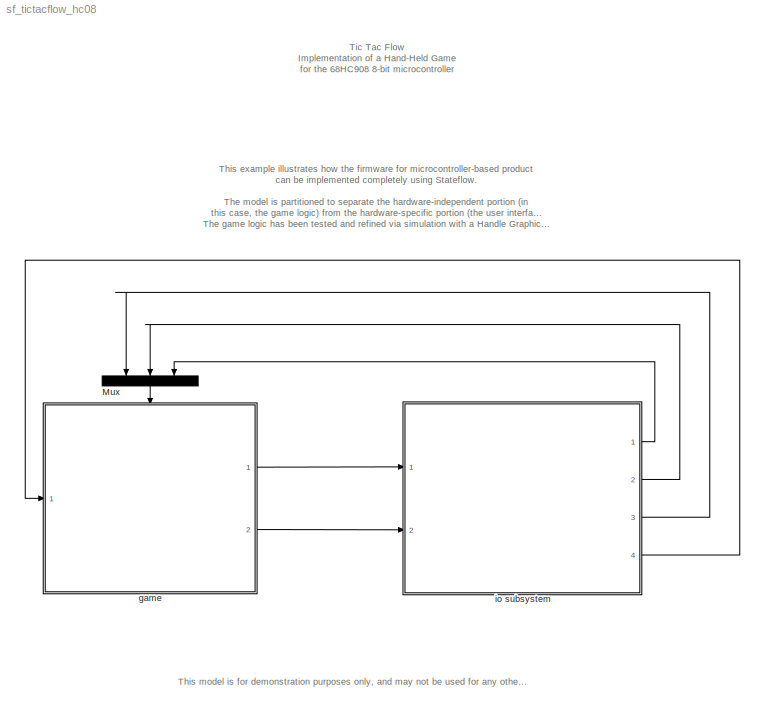
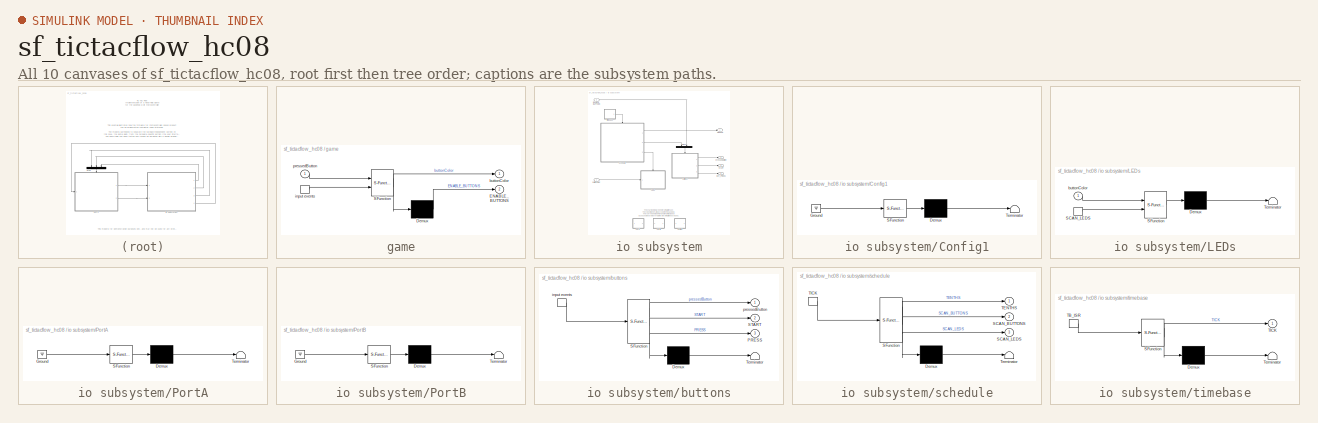
[diagram: thumbnail index - all 10 canvases of the model, root first then tree order]
MODEL sf_tictacflow_hc08
KIND model
BLOCK [Mux] Mux
  DisplayOption = bar
  Inputs = 3
  Ports = [3, 1]
BLOCK [SubSystem] game
  MaskDescription = Stateflow diagram
  MaskDisplay = plot(sf('Private','sfblk','xIcon'),sf('Private','sfblk','yIcon'));text(0.5,0,sf('Private', 'sfblk', 'tIcon'),'HorizontalAl','Center','VerticalAl','Bottom');
  MaskIconFrame = off
  MaskIconOpaque = off
  MaskIconRotate = none
  MaskIconUnits = autoscale
  MaskSelfModifiable = on
  MaskType = Stateflow
  MinAlgLoopOccurrences = off
  Ports = [1, 2, 0, 1]
  PropExecContextAcrossSSBoundary = on
  RTWSystemCode = Auto
  TreatAsAtomicUnit = on
BLOCK [Demux] game/ Demux 
  Outputs = 1
  Ports = [1, 1]
BLOCK [S-Function] game/ SFunction 
  FunctionName = sf_sfun
  PortCounts = [2 2]
  Ports = [2, 2]
  Tag = Stateflow S-Function sf_tictacflow_hc08 1
BLOCK [TriggerPort] game/ input events 
  Ports = [0, 1]
  ShowOutputPort = on
  TriggerType = function-call
  ZeroCross = off
BLOCK [Outport] game/ENABLE_BUTTONS
  IconDisplay = Port number
  Port = 2
BLOCK [Outport] game/buttonColor
  IconDisplay = Port number
BLOCK [Inport] game/pressedButton
  IconDisplay = Port number
  LatchInput = off
  Port = 1
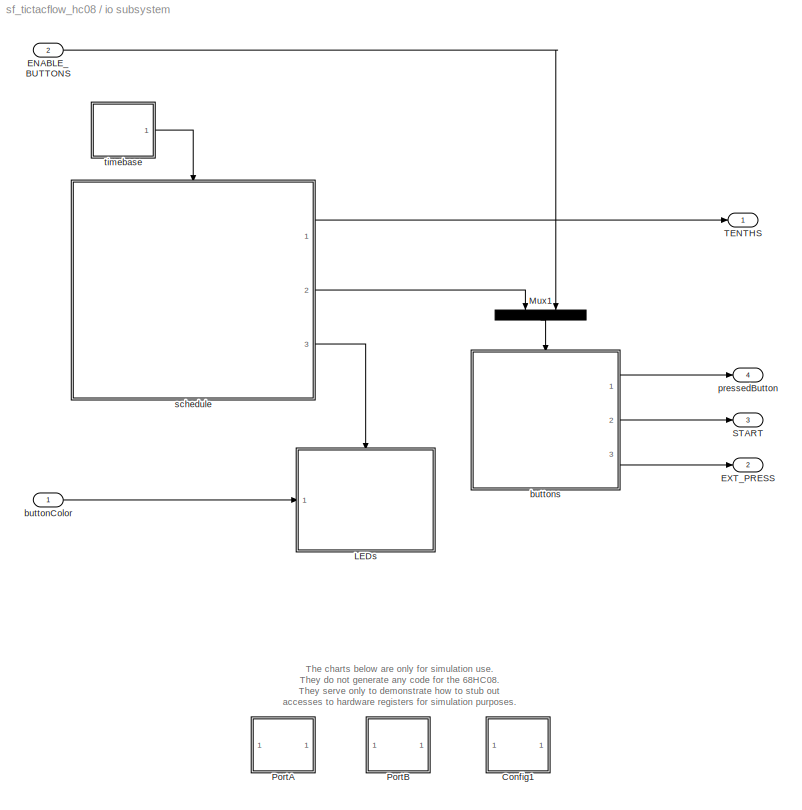
BLOCK [SubSystem] io subsystem
  MinAlgLoopOccurrences = off
  Ports = [2, 4]
  PropExecContextAcrossSSBoundary = on
  RTWSystemCode = Auto
  TreatAsAtomicUnit = off
BLOCK [SubSystem] io subsystem/Config1
  MaskDescription = Stateflow diagram
  MaskDisplay = plot(sf('Private','sfblk','xIcon'),sf('Private','sfblk','yIcon'));text(0.5,0,sf('Private', 'sfblk', 'tIcon'),'HorizontalAl','Center','VerticalAl','Bottom');
  MaskIconFrame = off
  MaskIconOpaque = on
  MaskIconRotate = none
  MaskIconUnits = autoscale
  MaskSelfModifiable = on
  MaskType = Stateflow
  MinAlgLoopOccurrences = off
  Ports = []
  PropExecContextAcrossSSBoundary = on
  RTWSystemCode = Auto
  TreatAsAtomicUnit = off
BLOCK [Demux] io subsystem/Config1/ Demux 
  Outputs = 1
  Ports = [1, 1]
BLOCK [Ground] io subsystem/Config1/ Ground 
BLOCK [S-Function] io subsystem/Config1/ SFunction 
  FunctionName = sf_sfun
  PortCounts = [1 1]
  Ports = [1, 1]
  Tag = Stateflow S-Function sf_tictacflow_hc08 2
BLOCK [Terminator] io subsystem/Config1/ Terminator 
BLOCK [Inport] io subsystem/ENABLE_BUTTONS
  IconDisplay = Port number
  LatchInput = off
  Port = 2
BLOCK [Outport] io subsystem/EXT_PRESS
  IconDisplay = Port number
  Port = 2
BLOCK [SubSystem] io subsystem/LEDs
  MaskDescription = Stateflow diagram
  MaskDisplay = plot(sf('Private','sfblk','xIcon'),sf('Private','sfblk','yIcon'));text(0.5,0,sf('Private', 'sfblk', 'tIcon'),'HorizontalAl','Center','VerticalAl','Bottom');
  MaskIconFrame = off
  MaskIconOpaque = off
  MaskIconRotate = none
  MaskIconUnits = autoscale
  MaskSelfModifiable = on
  MaskType = Stateflow
  MinAlgLoopOccurrences = off
  Ports = [1, 0, 0, 1]
  PropExecContextAcrossSSBoundary = on
  RTWSystemCode = Auto
  TreatAsAtomicUnit = on
BLOCK [Demux] io subsystem/LEDs/ Demux 
  Outputs = 1
  Ports = [1, 1]
BLOCK [S-Function] io subsystem/LEDs/ SFunction 
  FunctionName = sf_sfun
  PortCounts = [2 1]
  Ports = [2, 1]
  Tag = Stateflow S-Function sf_tictacflow_hc08 11
BLOCK [Terminator] io subsystem/LEDs/ Terminator 
BLOCK [TriggerPort] io subsystem/LEDs/SCAN_LEDS
  Ports = [0, 1]
  ShowOutputPort = on
  TriggerType = either
  ZeroCross = off
BLOCK [Inport] io subsystem/LEDs/buttonColor
  IconDisplay = Port number
  LatchInput = off
  Port = 1
BLOCK [Mux] io subsystem/Mux1
  DisplayOption = bar
  Inputs = 2
  Ports = [2, 1]
BLOCK [SubSystem] io subsystem/PortA
  MaskDescription = Stateflow diagram
  MaskDisplay = plot(sf('Private','sfblk','xIcon'),sf('Private','sfblk','yIcon'));text(0.5,0,sf('Private', 'sfblk', 'tIcon'),'HorizontalAl','Center','VerticalAl','Bottom');
  MaskIconFrame = off
  MaskIconOpaque = on
  MaskIconRotate = none
  MaskIconUnits = autoscale
  MaskSelfModifiable = on
  MaskType = Stateflow
  MinAlgLoopOccurrences = off
  Ports = []
  PropExecContextAcrossSSBoundary = on
  RTWSystemCode = Auto
  TreatAsAtomicUnit = off
BLOCK [Demux] io subsystem/PortA/ Demux 
  Outputs = 1
  Ports = [1, 1]
BLOCK [Ground] io subsystem/PortA/ Ground 
BLOCK [S-Function] io subsystem/PortA/ SFunction 
  FunctionName = sf_sfun
  PortCounts = [1 1]
  Ports = [1, 1]
  Tag = Stateflow S-Function sf_tictacflow_hc08 5
BLOCK [Terminator] io subsystem/PortA/ Terminator 
BLOCK [SubSystem] io subsystem/PortB
  MaskDescription = Stateflow diagram
  MaskDisplay = plot(sf('Private','sfblk','xIcon'),sf('Private','sfblk','yIcon'));text(0.5,0,sf('Private', 'sfblk', 'tIcon'),'HorizontalAl','Center','VerticalAl','Bottom');
  MaskIconFrame = off
  MaskIconOpaque = on
  MaskIconRotate = none
  MaskIconUnits = autoscale
  MaskSelfModifiable = on
  MaskType = Stateflow
  MinAlgLoopOccurrences = off
  Ports = []
  PropExecContextAcrossSSBoundary = on
  RTWSystemCode = Auto
  TreatAsAtomicUnit = off
BLOCK [Demux] io subsystem/PortB/ Demux 
  Outputs = 1
  Ports = [1, 1]
BLOCK [Ground] io subsystem/PortB/ Ground 
BLOCK [S-Function] io subsystem/PortB/ SFunction 
  FunctionName = sf_sfun
  PortCounts = [1 1]
  Ports = [1, 1]
  Tag = Stateflow S-Function sf_tictacflow_hc08 3
BLOCK [Terminator] io subsystem/PortB/ Terminator 
BLOCK [Outport] io subsystem/START
  IconDisplay = Port number
  Port = 3
BLOCK [Outport] io subsystem/TENTHS
  IconDisplay = Port number
BLOCK [Inport] io subsystem/buttonColor
  IconDisplay = Port number
  LatchInput = off
  Port = 1
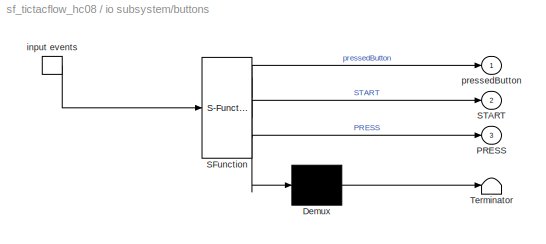
BLOCK [SubSystem] io subsystem/buttons
  MaskDescription = Stateflow diagram
  MaskDisplay = plot(sf('Private','sfblk','xIcon'),sf('Private','sfblk','yIcon'));text(0.5,0,sf('Private', 'sfblk', 'tIcon'),'HorizontalAl','Center','VerticalAl','Bottom');
  MaskIconFrame = off
  MaskIconOpaque = off
  MaskIconRotate = none
  MaskIconUnits = autoscale
  MaskSelfModifiable = on
  MaskType = Stateflow
  MinAlgLoopOccurrences = off
  Ports = [0, 3, 0, 1]
  PropExecContextAcrossSSBoundary = on
  RTWSystemCode = Auto
  TreatAsAtomicUnit = on
BLOCK [Demux] io subsystem/buttons/ Demux 
  Outputs = 1
  Ports = [1, 1]
BLOCK [S-Function] io subsystem/buttons/ SFunction 
  FunctionName = sf_sfun
  PortCounts = [1 4]
  Ports = [1, 4]
  Tag = Stateflow S-Function sf_tictacflow_hc08 10
BLOCK [Terminator] io subsystem/buttons/ Terminator 
BLOCK [TriggerPort] io subsystem/buttons/ input events 
  Ports = [0, 1]
  ShowOutputPort = on
  TriggerType = either
  ZeroCross = off
BLOCK [Outport] io subsystem/buttons/PRESS
  IconDisplay = Port number
  Port = 3
BLOCK [Outport] io subsystem/buttons/START
  IconDisplay = Port number
  Port = 2
BLOCK [Outport] io subsystem/buttons/pressedButton
  IconDisplay = Port number
BLOCK [Outport] io subsystem/pressedButton
  IconDisplay = Port number
  Port = 4
BLOCK [SubSystem] io subsystem/schedule
  MaskDescription = Stateflow diagram
  MaskDisplay = plot(sf('Private','sfblk','xIcon'),sf('Private','sfblk','yIcon'));text(0.5,0,sf('Private', 'sfblk', 'tIcon'),'HorizontalAl','Center','VerticalAl','Bottom');
  MaskIconFrame = off
  MaskIconOpaque = off
  MaskIconRotate = none
  MaskIconUnits = autoscale
  MaskSelfModifiable = on
  MaskType = Stateflow
  MinAlgLoopOccurrences = off
  Ports = [0, 3, 0, 1]
  PropExecContextAcrossSSBoundary = on
  RTWSystemCode = Auto
  TreatAsAtomicUnit = on
BLOCK [Demux] io subsystem/schedule/ Demux 
  Outputs = 1
  Ports = [1, 1]
BLOCK [S-Function] io subsystem/schedule/ SFunction 
  FunctionName = sf_sfun
  PortCounts = [1 4]
  Ports = [1, 4]
  Tag = Stateflow S-Function sf_tictacflow_hc08 12
BLOCK [Terminator] io subsystem/schedule/ Terminator 
BLOCK [Outport] io subsystem/schedule/SCAN_BUTTONS
  IconDisplay = Port number
  Port = 2
BLOCK [Outport] io subsystem/schedule/SCAN_LEDS
  IconDisplay = Port number
  Port = 3
BLOCK [Outport] io subsystem/schedule/TENTHS
  IconDisplay = Port number
BLOCK [TriggerPort] io subsystem/schedule/TICK
  Ports = [0, 1]
  ShowOutputPort = on
  TriggerType = either
  ZeroCross = off
BLOCK [SubSystem] io subsystem/timebase
  MaskDescription = Stateflow diagram
  MaskDisplay = plot(sf('Private','sfblk','xIcon'),sf('Private','sfblk','yIcon'));text(0.5,0,sf('Private', 'sfblk', 'tIcon'),'HorizontalAl','Center','VerticalAl','Bottom');
  MaskIconFrame = off
  MaskIconOpaque = off
  MaskIconRotate = none
  MaskIconUnits = autoscale
  MaskSelfModifiable = on
  MaskType = Stateflow
  MinAlgLoopOccurrences = off
  Ports = [0, 1, 0, 1]
  PropExecContextAcrossSSBoundary = on
  RTWSystemCode = Auto
  TreatAsAtomicUnit = on
BLOCK [Demux] io subsystem/timebase/ Demux 
  Outputs = 1
  Ports = [1, 1]
BLOCK [S-Function] io subsystem/timebase/ SFunction 
  FunctionName = sf_sfun
  PortCounts = [1 2]
  Ports = [1, 2]
  Tag = Stateflow S-Function sf_tictacflow_hc08 13
BLOCK [Terminator] io subsystem/timebase/ Terminator 
BLOCK [TriggerPort] io subsystem/timebase/TB_ISR
  Ports = [0, 1]
  ShowOutputPort = on
  TriggerType = either
  ZeroCross = off
BLOCK [Outport] io subsystem/timebase/TICK
  IconDisplay = Port number
ANNOTATION (root): This example illustrates how the firmware for microcontroller-based product \ncan be implemented completely using Stateflow.\n\nThe model is partitioned to separate the hardware-independent portion (in \nthis case, the game logic) from the hardware-specific portion (the user interface).\nThe game logic has been tested and refined via simulation with a Handle Graphics mock-up of the intended user i...<+195ch>
ANNOTATION (root): This model is for demonstration purposes only, and may not be used for any other purpose.
ANNOTATION (root): Tic Tac Flow\nImplementation of a Hand-Held Game\nfor the 68HC908 8-bit microcontroller
ANNOTATION io subsystem: The charts below are only for simulation use.\nThey do not generate any code for the 68HC08.\nThey serve only to demonstrate how to stub out \naccesses to hardware registers for simulation purposes.
LINE Mux:1 -> game:trigger
LINE game/ Demux :1 -> game/ENABLE_BUTTONS:1
LINE game/ SFunction :1 -> game/ Demux :1
LINE game/ SFunction :2 -> game/buttonColor:1
LINE game/ input events :1 -> game/ SFunction :2
LINE game/pressedButton:1 -> game/ SFunction :1
LINE game:1 -> io subsystem:1
LINE game:2 -> io subsystem:2
LINE io subsystem/Config1/ Demux :1 -> io subsystem/Config1/ Terminator :1
LINE io subsystem/Config1/ Ground :1 -> io subsystem/Config1/ SFunction :1
LINE io subsystem/Config1/ SFunction :1 -> io subsystem/Config1/ Demux :1
LINE io subsystem/ENABLE_BUTTONS:1 -> io subsystem/Mux1:2
LINE io subsystem/LEDs/ Demux :1 -> io subsystem/LEDs/ Terminator :1
LINE io subsystem/LEDs/ SFunction :1 -> io subsystem/LEDs/ Demux :1
LINE io subsystem/LEDs/SCAN_LEDS:1 -> io subsystem/LEDs/ SFunction :2
LINE io subsystem/LEDs/buttonColor:1 -> io subsystem/LEDs/ SFunction :1
LINE io subsystem/Mux1:1 -> io subsystem/buttons:trigger
LINE io subsystem/PortA/ Demux :1 -> io subsystem/PortA/ Terminator :1
LINE io subsystem/PortA/ Ground :1 -> io subsystem/PortA/ SFunction :1
LINE io subsystem/PortA/ SFunction :1 -> io subsystem/PortA/ Demux :1
LINE io subsystem/PortB/ Demux :1 -> io subsystem/PortB/ Terminator :1
LINE io subsystem/PortB/ Ground :1 -> io subsystem/PortB/ SFunction :1
LINE io subsystem/PortB/ SFunction :1 -> io subsystem/PortB/ Demux :1
LINE io subsystem/buttonColor:1 -> io subsystem/LEDs:1
LINE io subsystem/buttons/ Demux :1 -> io subsystem/buttons/ Terminator :1
LINE io subsystem/buttons/ SFunction :1 -> io subsystem/buttons/ Demux :1
LINE io subsystem/buttons/ SFunction :2 -> io subsystem/buttons/pressedButton:1
LINE io subsystem/buttons/ SFunction :3 -> io subsystem/buttons/START:1
LINE io subsystem/buttons/ SFunction :4 -> io subsystem/buttons/PRESS:1
LINE io subsystem/buttons/ input events :1 -> io subsystem/buttons/ SFunction :1
LINE io subsystem/buttons:1 -> io subsystem/pressedButton:1
LINE io subsystem/buttons:2 -> io subsystem/START:1
LINE io subsystem/buttons:3 -> io subsystem/EXT_PRESS:1
LINE io subsystem/schedule/ Demux :1 -> io subsystem/schedule/ Terminator :1
LINE io subsystem/schedule/ SFunction :1 -> io subsystem/schedule/ Demux :1
LINE io subsystem/schedule/ SFunction :2 -> io subsystem/schedule/TENTHS:1
LINE io subsystem/schedule/ SFunction :3 -> io subsystem/schedule/SCAN_BUTTONS:1
LINE io subsystem/schedule/ SFunction :4 -> io subsystem/schedule/SCAN_LEDS:1
LINE io subsystem/schedule/TICK:1 -> io subsystem/schedule/ SFunction :1
LINE io subsystem/schedule:1 -> io subsystem/TENTHS:1
LINE io subsystem/schedule:2 -> io subsystem/Mux1:1
LINE io subsystem/schedule:3 -> io subsystem/LEDs:trigger
LINE io subsystem/timebase/ Demux :1 -> io subsystem/timebase/ Terminator :1
LINE io subsystem/timebase/ SFunction :1 -> io subsystem/timebase/ Demux :1
LINE io subsystem/timebase/ SFunction :2 -> io subsystem/timebase/TICK:1
LINE io subsystem/timebase/TB_ISR:1 -> io subsystem/timebase/ SFunction :1
LINE io subsystem/timebase:1 -> io subsystem/schedule:trigger
LINE io subsystem:1 -> Mux:3
LINE io subsystem:2 -> Mux:2
LINE io subsystem:3 -> Mux:1
LINE io subsystem:4 -> game:1
CHART game states=66 transitions=121
  STATE_LABEL 'button_7'
  STATE_LABEL 'enabled\\nbuttonColor[thisButton] = DARK;'
  STATE_LABEL 'disabled'
  STATE_LABEL 'active'
  STATE_LABEL 'red\\nbuttonColor[thisButton] = RED;\\nTURN;'
  STATE_LABEL 'green\\nbuttonColor[thisButton] = GREEN;\\nTURN;'
  STATE_LABEL 'button_0'
  STATE_LABEL 'disabled'
  STATE_LABEL 'enabled\\nbuttonColor[thisButton] = DARK;'
  STATE_LABEL 'active'
  STATE_LABEL 'red\\nbuttonColor[thisButton] = RED;\\nTURN;'
  STATE_LABEL 'green\\nbuttonColor[thisButton] = GREEN;\\nTURN;'
  STATE_LABEL 'button_5'
  STATE_LABEL 'disabled'
  STATE_LABEL 'enabled\\nbuttonColor[thisButton] = DARK;'
  STATE_LABEL 'active'
  STATE_LABEL 'red\\nbuttonColor[thisButton] = RED;\\nTURN;'
  STATE_LABEL 'green\\nbuttonColor[thisButton] = GREEN;\\nTURN;'
  STATE_LABEL 'button_2'
  STATE_LABEL 'disabled'
  STATE_LABEL 'enabled\\nbuttonColor[thisButton] = DARK;'
  STATE_LABEL 'active'
  STATE_LABEL 'red\\nbuttonColor[thisButton] = RED;\\nTURN;'
  STATE_LABEL 'green\\nbuttonColor[thisButton] = GREEN;\\nTURN;'
  STATE_LABEL 'button_4'
  STATE_LABEL 'disabled'
  STATE_LABEL 'enabled\\nbuttonColor[thisButton] = DARK;'
  STATE_LABEL 'active'
  STATE_LABEL 'red\\nbuttonColor[thisButton] = RED;\\nTURN;'
  STATE_LABEL 'green\\nbuttonColor[thisButton] = GREEN;\\nTURN;'
  STATE_LABEL 'button_6'
  STATE_LABEL 'disabled'
  STATE_LABEL 'enabled\\nbuttonColor[thisButton] = DARK;'
  STATE_LABEL 'active'
  STATE_LABEL 'red\\nbuttonColor[thisButton] = RED;\\nTURN;'
  STATE_LABEL 'green\\nbuttonColor[thisButton] = GREEN;\\nTURN;'
  STATE_LABEL 'button_3'
  STATE_LABEL 'disabled'
  STATE_LABEL 'enabled\\nbuttonColor[thisButton] = DARK;'
  STATE_LABEL 'active'
CHART io subsystem/Config1 states=1 transitions=1
  STATE_LABEL 'wr_CONFIG1(x)'
CHART io subsystem/PortB states=2 transitions=2
  STATE_LABEL 'wr_PTB(x)'
  STATE_LABEL 'wr_DDRB(x)'
CHART io subsystem/PortA states=4 transitions=4
  STATE_LABEL 'wr_PTA(x)'
  STATE_LABEL 'wr_DDRA(x)'
  STATE_LABEL 'wr_PTAPUE(x)'
  STATE_LABEL 'val = rd_PTA()'
CHART io subsystem/buttons states=8 transitions=27
  STATE_LABEL 'debounce\\nentry:'
  STATE_LABEL 'noSwitches'
  STATE_LABEL 'oneSwitch'
  STATE_LABEL 'manySwitches'
  STATE_LABEL 'yes = isSwitchOn(sw)'
  STATE_LABEL 'disabled\\nPRESS;'
  STATE_LABEL 'enabled'
  STATE_LABEL 'enable'
CHART io subsystem/LEDs states=3 transitions=15
  STATE_LABEL 'lightOneLED(led,brightness)'
  STATE_LABEL 'ScanLEDs()'
  STATE_LABEL 'timer1_isr()'
CHART io subsystem/schedule states=3 transitions=3
  STATE_LABEL 'scheduler\\nduring:\\nSCAN_LEDS;\\n\\non every(120,TICK): TENTHS;'
  STATE_LABEL 'a\\nSCAN_BUTTONS;'
  STATE_LABEL 'b'
CHART io subsystem/timebase states=0 transitions=14
